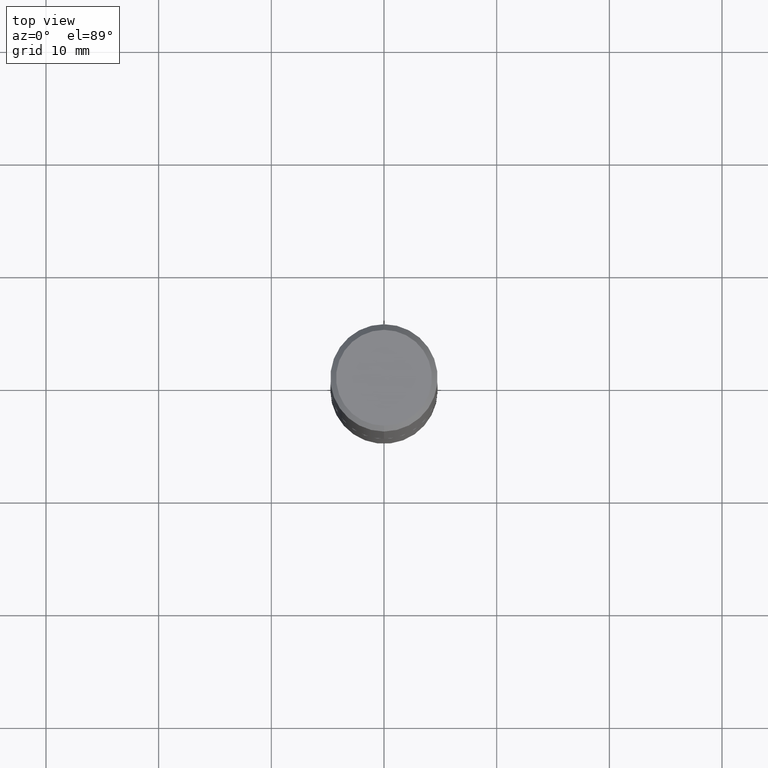
[diagram: clean part render]
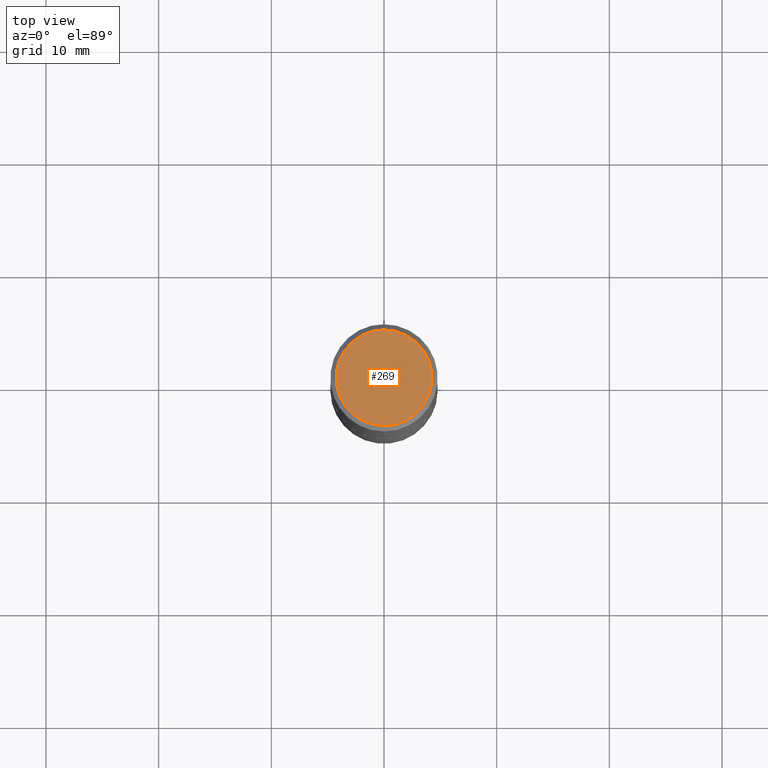
[diagram: same view with one face highlighted and labeled with its STEP entity id]
A machine part, top view. The second image highlights one B-rep face of the part: STEP entity #269.
In plain terms, the highlighted planar face has unit normal (0, -0, -1).
Its self-contained STEP definition (entity closure, byte-faithful):
#2 = EDGE_CURVE ( 'NONE', #370, #78, #31, .T. ) ;
#4 = CARTESIAN_POINT ( 'NONE',  ( 1.169646248512449595E-15, 0.1675000000000000100, -5.997178120976420969E-16 ) ) ;
#17 = DIRECTION ( 'NONE',  ( -6.982962677686265922E-15, -1.000000000000000000, 3.490942761243906817E-15 ) ) ;
#31 = CIRCLE ( 'NONE', #97, 0.1675000000000000100 ) ;
#76 = PLANE ( 'NONE',  #359 ) ;
#78 = VERTEX_POINT ( 'NONE', #195 ) ;
#97 = AXIS2_PLACEMENT_3D ( 'NONE', #243, #309, #17 ) ;
#107 = DIRECTION ( 'NONE',  ( 6.982962677686265922E-15, 1.000000000000000000, -3.490942761243906423E-15 ) ) ;
#115 = DIRECTION ( 'NONE',  ( -6.982962677686265922E-15, -1.000000000000000000, 3.490942761243906817E-15 ) ) ;
#117 = DIRECTION ( 'NONE',  ( -2.445844892912588876E-29, 3.490942761243906817E-15, 1.000000000000000000 ) ) ;
#125 = CARTESIAN_POINT ( 'NONE',  ( 1.239475875289312499E-15, 0.1675000000000000100, -6.147027116869298551E-16 ) ) ;
#140 = DIRECTION ( 'NONE',  ( 2.445844892912588876E-29, -3.490942761243906423E-15, -1.000000000000000000 ) ) ;
#149 = AXIS2_PLACEMENT_3D ( 'NONE', #371, #117, #115 ) ;
#195 = CARTESIAN_POINT ( 'NONE',  ( -1.217738394604446442E-15, -0.1675000000000000100, 5.547631133297791179E-16 ) ) ;
#202 = EDGE_LOOP ( 'NONE', ( #280, #314 ) ) ;
#238 = CIRCLE ( 'NONE', #149, 0.1675000000000000100 ) ;
#243 = CARTESIAN_POINT ( 'NONE',  ( 7.330148026253442751E-46, -1.046228534983812136E-31, -2.996979917857535013E-17 ) ) ;
#269 = ADVANCED_FACE ( 'NONE', ( #299 ), #76, .F. ) ;
#280 = ORIENTED_EDGE ( 'NONE', *, *, #2, .T. ) ;
#299 = FACE_OUTER_BOUND ( 'NONE', #202, .T. ) ;
#309 = DIRECTION ( 'NONE',  ( -2.445844892912588876E-29, 3.490942761243906817E-15, 1.000000000000000000 ) ) ;
#314 = ORIENTED_EDGE ( 'NONE', *, *, #401, .T. ) ;
#359 = AXIS2_PLACEMENT_3D ( 'NONE', #4, #140, #107 ) ;
#370 = VERTEX_POINT ( 'NONE', #125 ) ;
#371 = CARTESIAN_POINT ( 'NONE',  ( 7.330148026253442751E-46, -1.046228534983812136E-31, -2.996979917857535013E-17 ) ) ;
#401 = EDGE_CURVE ( 'NONE', #78, #370, #238, .T. ) ;